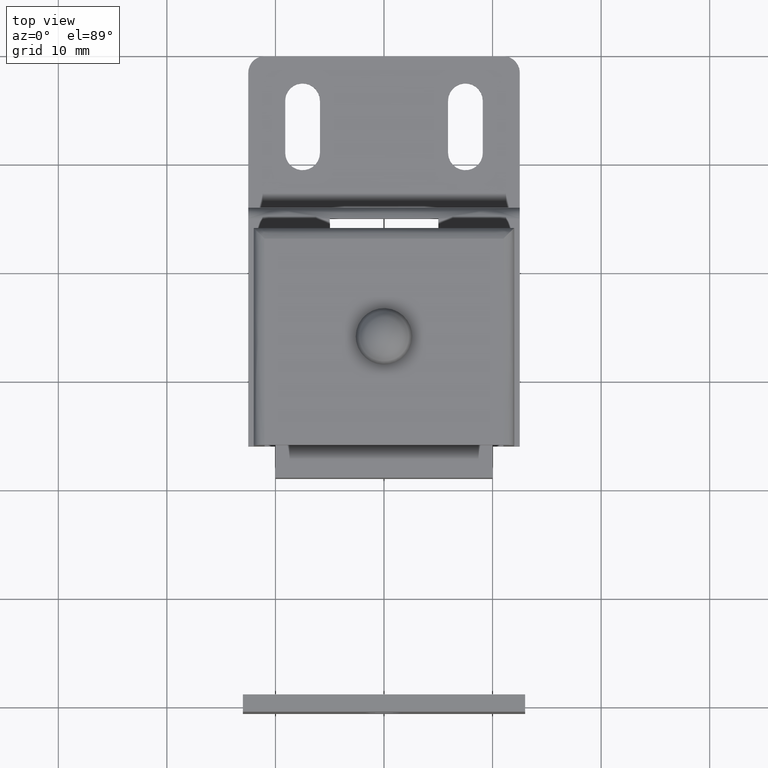
[diagram: clean part render]
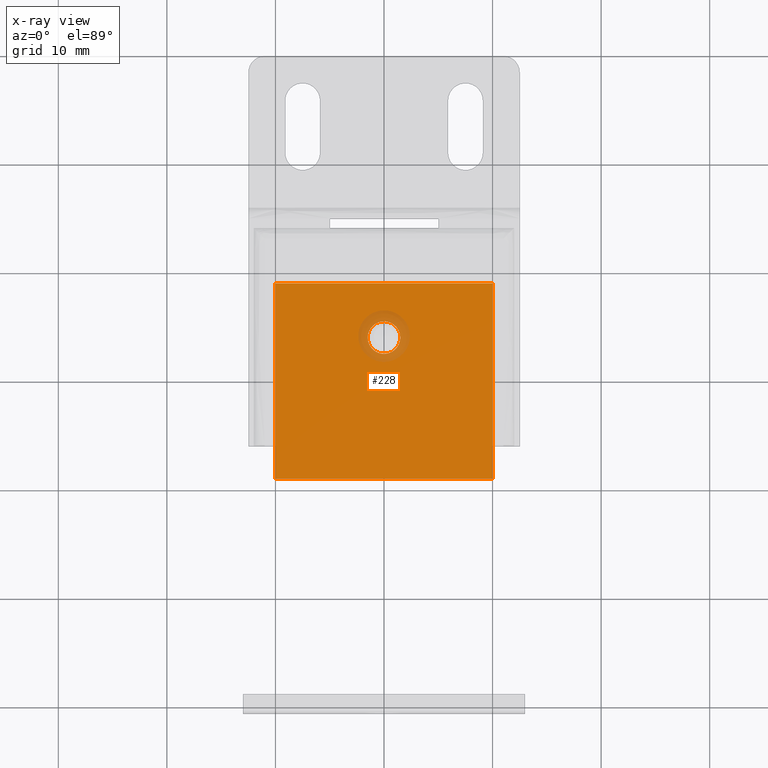
[diagram: x-ray — body ghosted, one internal face saturated and labeled with its STEP entity id]
A machine part, top view, then the same camera in x-ray: the body is ghosted and one INTERNAL B-rep face — a face not visible from any outside direction — is saturated and labeled: STEP entity #228.
In plain terms, the highlighted face is a freeform B-spline surface patch.
Its self-contained STEP definition (entity closure, byte-faithful):
#23=CARTESIAN_POINT('',(-0.013089803400145,-24.500057115405070,5.199996574920554));
#24=VERTEX_POINT('',#23);
#25=CARTESIAN_POINT('',(-1.500000000000000,-26.0,5.199996574920554));
#26=VERTEX_POINT('',#25);
#27=CARTESIAN_POINT('',(-0.013089803400145,-24.500057115405070,5.199996574920554));
#28=CARTESIAN_POINT('',(-1.499999999999999,-24.513033184258809,5.199996574920553));
#29=CARTESIAN_POINT('',(-1.500000000000000,-26.0,5.199996574920554));
#37=(BOUNDED_CURVE()B_SPLINE_CURVE(2,(#27,#28,#29),.UNSPECIFIED.,.F.,.U.)B_SPLINE_CURVE_WITH_KNOTS((3,3),(0.751539894352906,1.0),.UNSPECIFIED.)CURVE()GEOMETRIC_REPRESENTATION_ITEM()RATIONAL_B_SPLINE_CURVE((0.996414028058938,0.708910879641168,1.0))REPRESENTATION_ITEM(''));
#38=EDGE_CURVE('',#24,#26,#37,.T.);
#40=CARTESIAN_POINT('',(0.013089803400145,-27.499942884594930,5.199996574920554));
#41=VERTEX_POINT('',#40);
#42=CARTESIAN_POINT('',(-1.500000000000000,-26.0,5.199996574920554));
#43=CARTESIAN_POINT('',(-1.500000000000000,-27.500000000000004,5.199996574920553));
#44=CARTESIAN_POINT('',(0.0,-27.500000000000000,5.199996574920554));
#45=CARTESIAN_POINT('',(0.006545026307349,-27.500000000000000,5.199996574920554));
#46=CARTESIAN_POINT('',(0.013089803400145,-27.499942884594926,5.199996574920554));
#54=(BOUNDED_CURVE()B_SPLINE_CURVE(2,(#42,#43,#44,#45,#46),.UNSPECIFIED.,.F.,.U.)B_SPLINE_CURVE_WITH_KNOTS((3,2,3),(0.0,0.250000000000000,0.251539894352906),.UNSPECIFIED.)CURVE()GEOMETRIC_REPRESENTATION_ITEM()RATIONAL_B_SPLINE_CURVE((1.0,0.707106781186548,1.0,0.998195901545379,0.996414028058938))REPRESENTATION_ITEM(''));
#55=EDGE_CURVE('',#26,#41,#54,.T.);
#122=CARTESIAN_POINT('',(1.500000000000000,-26.0,5.199996574920554));
#123=VERTEX_POINT('',#122);
#124=CARTESIAN_POINT('',(1.500000000000000,-26.0,5.199996574920554));
#125=CARTESIAN_POINT('',(1.500000000000000,-24.500000000000004,5.199996574920553));
#126=CARTESIAN_POINT('',(0.0,-24.500000000000000,5.199996574920554));
#127=CARTESIAN_POINT('',(-0.006545026307349,-24.499999999999996,5.199996574920554));
#128=CARTESIAN_POINT('',(-0.013089803400145,-24.500057115405070,5.199996574920554));
#136=(BOUNDED_CURVE()B_SPLINE_CURVE(2,(#124,#125,#126,#127,#128),.UNSPECIFIED.,.F.,.U.)B_SPLINE_CURVE_WITH_KNOTS((3,2,3),(0.500000000000000,0.750000000000000,0.751539894352906),.UNSPECIFIED.)CURVE()GEOMETRIC_REPRESENTATION_ITEM()RATIONAL_B_SPLINE_CURVE((1.0,0.707106781186548,1.0,0.998195901545379,0.996414028058938))REPRESENTATION_ITEM(''));
#137=EDGE_CURVE('',#123,#24,#136,.T.);
#171=CARTESIAN_POINT('',(0.013089803400145,-27.499942884594926,5.199996574920554));
#172=CARTESIAN_POINT('',(1.499999999999999,-27.486966815741191,5.199996574920553));
#173=CARTESIAN_POINT('',(1.500000000000000,-26.0,5.199996574920554));
#181=(BOUNDED_CURVE()B_SPLINE_CURVE(2,(#171,#172,#173),.UNSPECIFIED.,.F.,.U.)B_SPLINE_CURVE_WITH_KNOTS((3,3),(0.251539894352906,0.500000000000000),.UNSPECIFIED.)CURVE()GEOMETRIC_REPRESENTATION_ITEM()RATIONAL_B_SPLINE_CURVE((0.996414028058938,0.708910879641168,1.0))REPRESENTATION_ITEM(''));
#182=EDGE_CURVE('',#41,#123,#181,.T.);
#187=CARTESIAN_POINT('',(10.999000061136121,-39.899099965112512,5.199996574920554));
#188=CARTESIAN_POINT('',(-10.999002597577970,-39.899099965112512,5.199996574920554));
#189=CARTESIAN_POINT('',(10.999000061136121,-20.100899552089860,5.199996574920554));
#190=CARTESIAN_POINT('',(-10.999002597577970,-20.100899552089860,5.199996574920554));
#191=B_SPLINE_SURFACE_WITH_KNOTS('',1,1,((#187,#189),(#188,#190)),.UNSPECIFIED.,.F.,.F.,.U.,(2,2),(2,2),(0.0,21.998002658714089),(0.0,19.798200413022641),.UNSPECIFIED.);
#192=CARTESIAN_POINT('',(-10.000002000000000,-39.0,5.199996574920554));
#193=VERTEX_POINT('',#192);
#194=CARTESIAN_POINT('',(10.0,-39.0,5.199996574920554));
#195=VERTEX_POINT('',#194);
#196=CARTESIAN_POINT('',(-10.000002000000000,-39.0,5.199996574920554));
#197=CARTESIAN_POINT('',(10.0,-39.0,5.199996574920554));
#198=QUASI_UNIFORM_CURVE('',1,(#196,#197),.UNSPECIFIED.,.F.,.U.);
#199=EDGE_CURVE('',#193,#195,#198,.T.);
#200=ORIENTED_EDGE('',*,*,#199,.T.);
#201=CARTESIAN_POINT('',(10.0,-21.0,5.199996574920554));
#202=VERTEX_POINT('',#201);
#203=CARTESIAN_POINT('',(10.0,-21.0,5.199996574920554));
#204=CARTESIAN_POINT('',(10.0,-39.0,5.199996574920554));
#205=QUASI_UNIFORM_CURVE('',1,(#203,#204),.UNSPECIFIED.,.F.,.U.);
#206=EDGE_CURVE('',#202,#195,#205,.T.);
#207=ORIENTED_EDGE('',*,*,#206,.F.);
#208=CARTESIAN_POINT('',(-10.000002000000000,-21.0,5.199996574920554));
#209=VERTEX_POINT('',#208);
#210=CARTESIAN_POINT('',(-10.000002000000000,-21.0,5.199996574920554));
#211=CARTESIAN_POINT('',(10.0,-21.0,5.199996574920554));
#212=QUASI_UNIFORM_CURVE('',1,(#210,#211),.UNSPECIFIED.,.F.,.U.);
#213=EDGE_CURVE('',#209,#202,#212,.T.);
#214=ORIENTED_EDGE('',*,*,#213,.F.);
#215=CARTESIAN_POINT('',(-10.000002000000000,-21.0,5.199996574920554));
#216=CARTESIAN_POINT('',(-10.000002000000000,-39.0,5.199996574920554));
#217=QUASI_UNIFORM_CURVE('',1,(#215,#216),.UNSPECIFIED.,.F.,.U.);
#218=EDGE_CURVE('',#209,#193,#217,.T.);
#219=ORIENTED_EDGE('',*,*,#218,.T.);
#220=EDGE_LOOP('',(#200,#207,#214,#219));
#221=FACE_OUTER_BOUND('',#220,.T.);
#222=ORIENTED_EDGE('',*,*,#55,.F.);
#223=ORIENTED_EDGE('',*,*,#38,.F.);
#224=ORIENTED_EDGE('',*,*,#137,.F.);
#225=ORIENTED_EDGE('',*,*,#182,.F.);
#226=EDGE_LOOP('',(#222,#223,#224,#225));
#227=FACE_BOUND('',#226,.T.);
#228=ADVANCED_FACE('',(#221,#227),#191,.F.);